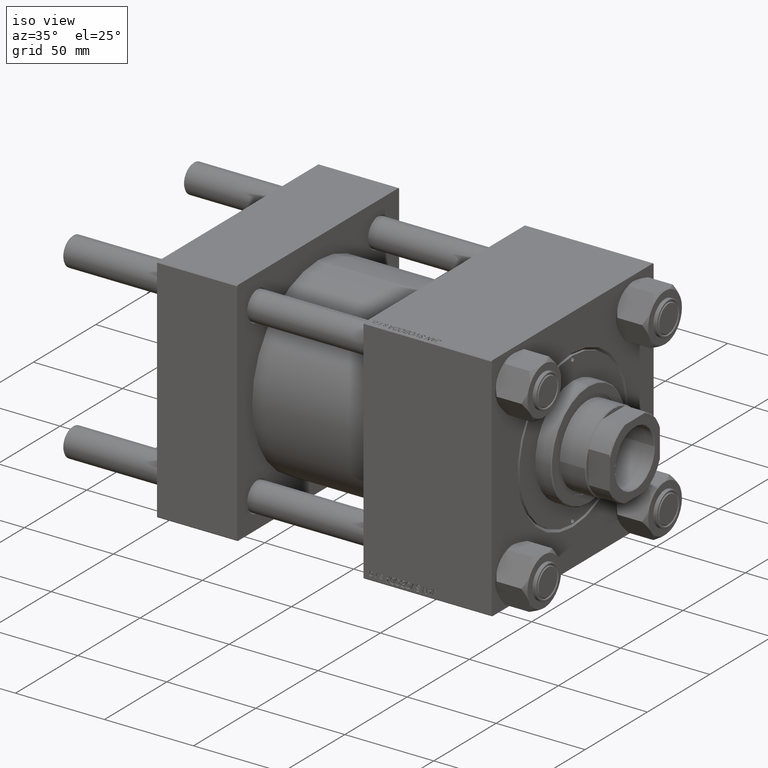
[diagram: clean part render]
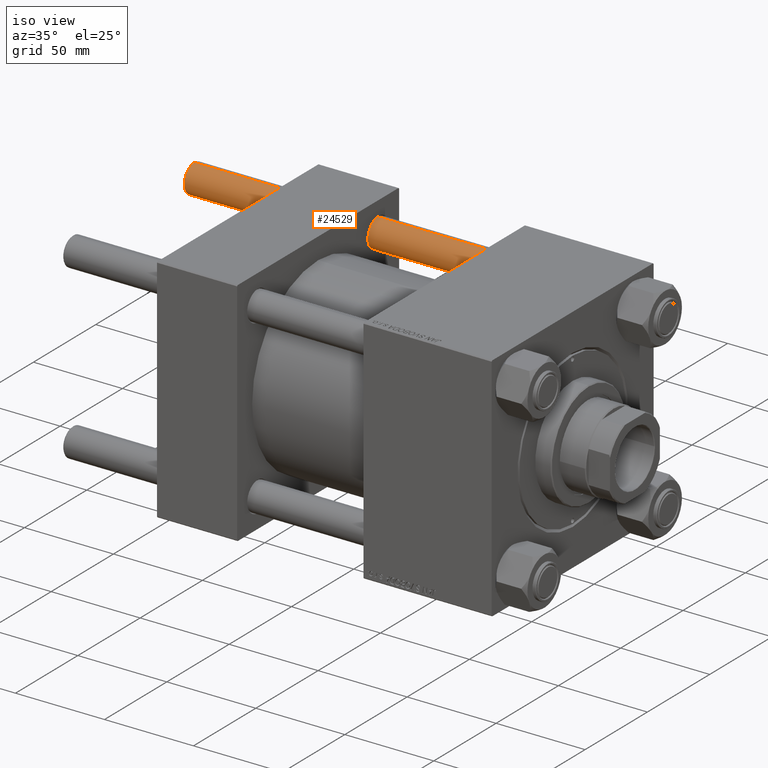
[diagram: same view with one face highlighted and labeled with its STEP entity id]
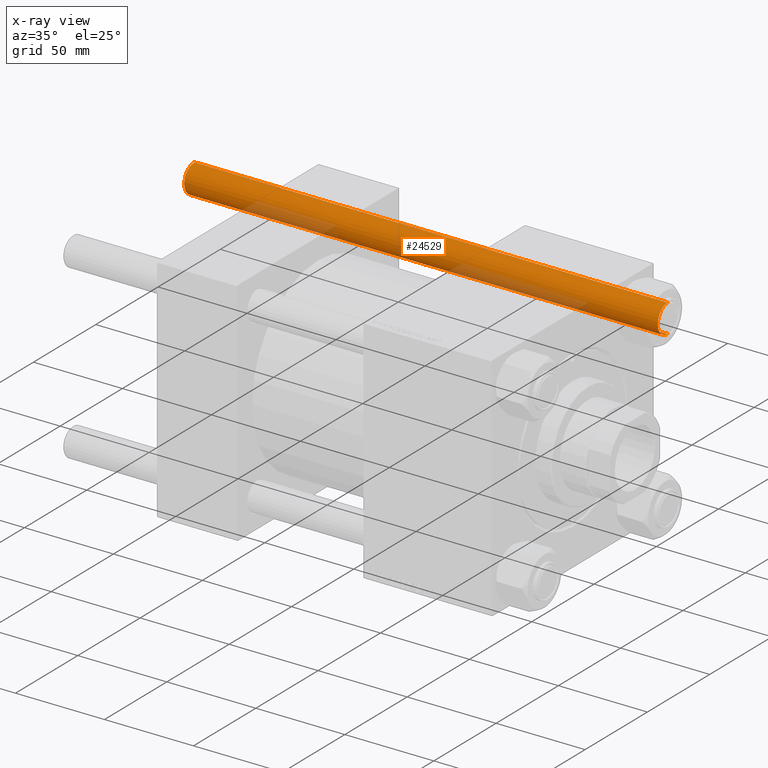
[diagram: x-ray of the same camera — body ghosted, the highlighted face saturated]
A machine part, iso view. The second image highlights one B-rep face of the part: STEP entity #24529.
The next image is the same camera in x-ray: the body ghosted, the highlighted face saturated — about 17% of this face is hidden behind the body in this view.
In plain terms, the highlighted cylindrical surface (edge-blend (fillet) strip) has radius 8 mm, axis along (-1, -0, -0).
Its self-contained STEP definition (entity closure, byte-faithful):
#576 = EDGE_CURVE ( 'NONE', #48078, #30431, #33211, .T. ) ;
#1517 = ORIENTED_EDGE ( 'NONE', *, *, #576, .T. ) ;
#1613 = FACE_OUTER_BOUND ( 'NONE', #8091, .T. ) ;
#1733 = DIRECTION ( 'NONE',  ( -0.000000000000000000, -0.000000000000000000, -1.000000000000000000 ) ) ;
#2674 = DIRECTION ( 'NONE',  ( -0.000000000000000000, -0.000000000000000000, -1.000000000000000000 ) ) ;
#4162 = CARTESIAN_POINT ( 'NONE',  ( 8.000000000000000000, 9.797174393178825657E-16, 266.5000000000000568 ) ) ;
#8091 = EDGE_LOOP ( 'NONE', ( #42838, #23973, #42157, #1517 ) ) ;
#9511 = DIRECTION ( 'NONE',  ( -1.000000000000000000, 0.000000000000000000, 0.000000000000000000 ) ) ;
#12503 = EDGE_CURVE ( 'NONE', #16940, #48078, #29761, .T. ) ;
#13335 = CYLINDRICAL_SURFACE ( 'NONE', #29879, 8.000000000000000000 ) ;
#13997 = DIRECTION ( 'NONE',  ( 1.000000000000000000, 0.000000000000000000, 0.000000000000000000 ) ) ;
#16940 = VERTEX_POINT ( 'NONE', #33371 ) ;
#17580 = CARTESIAN_POINT ( 'NONE',  ( 0.000000000000000000, 0.000000000000000000, 266.5000000000000568 ) ) ;
#18754 = CARTESIAN_POINT ( 'NONE',  ( 8.000000000000000000, 9.797174393178825657E-16, 0.5000000000000559552 ) ) ;
#20977 = DIRECTION ( 'NONE',  ( -0.000000000000000000, -0.000000000000000000, -1.000000000000000000 ) ) ;
#23163 = DIRECTION ( 'NONE',  ( -0.000000000000000000, -0.000000000000000000, 1.000000000000000000 ) ) ;
#23416 = DIRECTION ( 'NONE',  ( 1.000000000000000000, 0.000000000000000000, 0.000000000000000000 ) ) ;
#23973 = ORIENTED_EDGE ( 'NONE', *, *, #36369, .T. ) ;
#24529 = ADVANCED_FACE ( 'NONE', ( #1613 ), #13335, .T. ) ;
#29761 = LINE ( 'NONE', #36679, #39408 ) ;
#29879 = AXIS2_PLACEMENT_3D ( 'NONE', #49039, #20977, #9511 ) ;
#30431 = VERTEX_POINT ( 'NONE', #18754 ) ;
#30464 = CARTESIAN_POINT ( 'NONE',  ( 8.000000000000000000, 9.797174393178825657E-16, 267.0000000000000000 ) ) ;
#31050 = AXIS2_PLACEMENT_3D ( 'NONE', #17580, #45382, #13997 ) ;
#33211 = CIRCLE ( 'NONE', #38945, 8.000000000000000000 ) ;
#33371 = CARTESIAN_POINT ( 'NONE',  ( -8.000000000000000000, 0.000000000000000000, 266.5000000000000568 ) ) ;
#33787 = LINE ( 'NONE', #30464, #43319 ) ;
#35125 = CIRCLE ( 'NONE', #31050, 8.000000000000000000 ) ;
#35929 = CARTESIAN_POINT ( 'NONE',  ( 0.000000000000000000, 0.000000000000000000, 0.5000000000000559552 ) ) ;
#36369 = EDGE_CURVE ( 'NONE', #42118, #16940, #35125, .T. ) ;
#36679 = CARTESIAN_POINT ( 'NONE',  ( -8.000000000000000000, 0.000000000000000000, 267.0000000000000000 ) ) ;
#37854 = EDGE_CURVE ( 'NONE', #42118, #30431, #33787, .T. ) ;
#38945 = AXIS2_PLACEMENT_3D ( 'NONE', #35929, #23163, #23416 ) ;
#39408 = VECTOR ( 'NONE', #1733, 1000.000000000000000 ) ;
#40549 = CARTESIAN_POINT ( 'NONE',  ( -8.000000000000000000, 0.000000000000000000, 0.5000000000000559552 ) ) ;
#42118 = VERTEX_POINT ( 'NONE', #4162 ) ;
#42157 = ORIENTED_EDGE ( 'NONE', *, *, #12503, .T. ) ;
#42838 = ORIENTED_EDGE ( 'NONE', *, *, #37854, .F. ) ;
#43319 = VECTOR ( 'NONE', #2674, 1000.000000000000000 ) ;
#45382 = DIRECTION ( 'NONE',  ( 0.000000000000000000, 0.000000000000000000, -1.000000000000000000 ) ) ;
#48078 = VERTEX_POINT ( 'NONE', #40549 ) ;
#49039 = CARTESIAN_POINT ( 'NONE',  ( 0.000000000000000000, 0.000000000000000000, 267.0000000000000000 ) ) ;